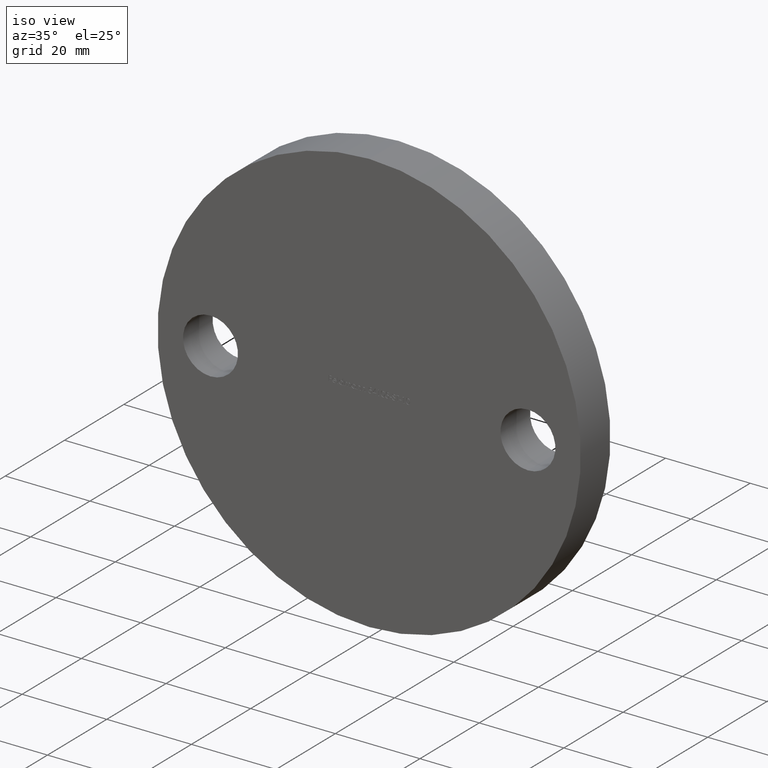
[diagram: clean part render]
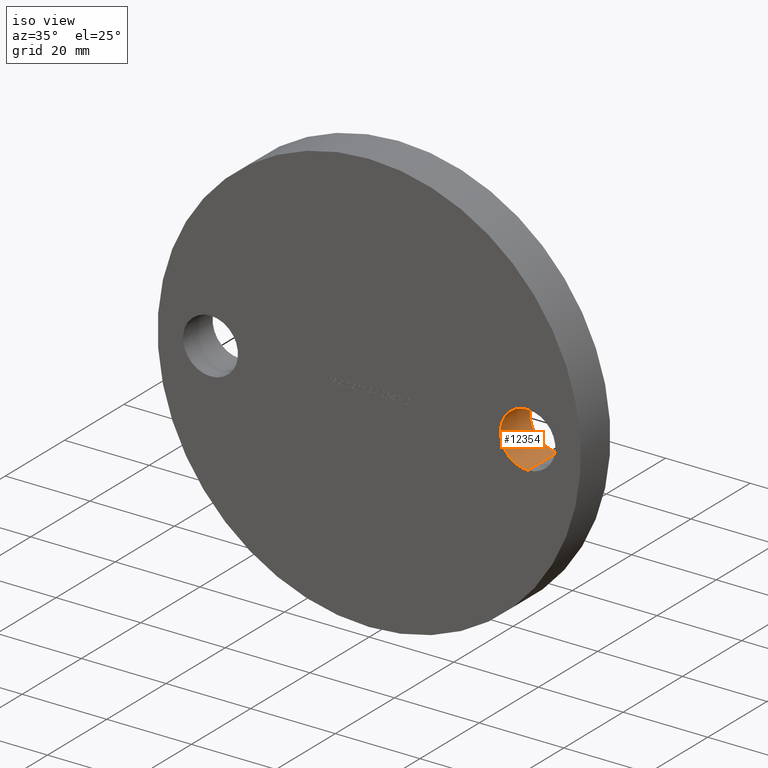
[diagram: same view with one face highlighted and labeled with its STEP entity id]
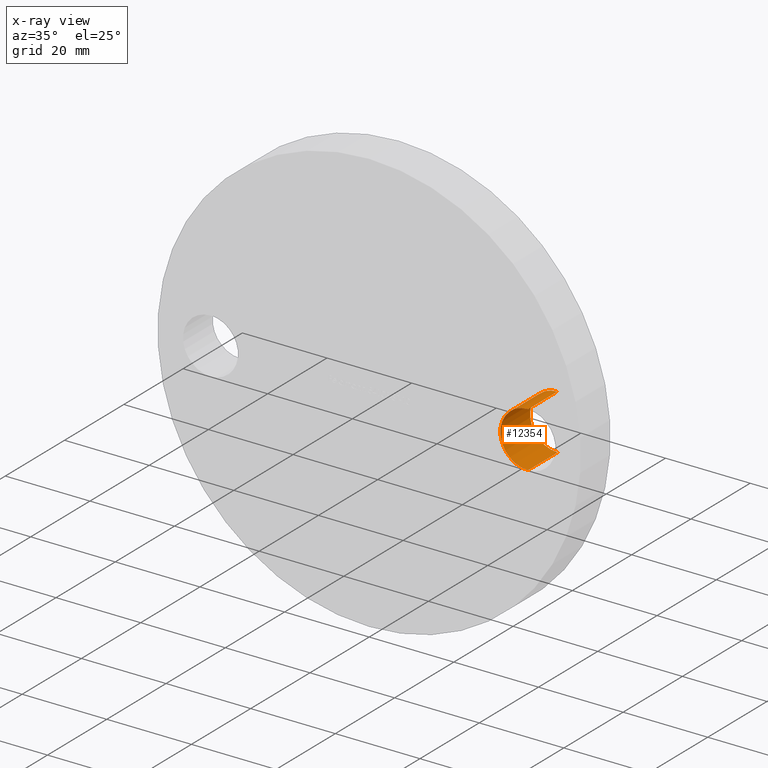
[diagram: x-ray of the same camera — body ghosted, the highlighted face saturated]
A machine part, iso view. The second image highlights one B-rep face of the part: STEP entity #12354.
The next image is the same camera in x-ray: the body ghosted, the highlighted face saturated — about 0% of this face is hidden behind the body in this view.
In plain terms, the highlighted cylindrical surface (edge-blend (fillet) strip) has radius 6.5 mm, axis along (-0, 1, -0).
Its self-contained STEP definition (entity closure, byte-faithful):
#202 = DIRECTION ( 'NONE',  ( -0.0000000000000000000, 1.000000000000000000, -0.0000000000000000000 ) ) ;
#772 = DIRECTION ( 'NONE',  ( -0.0000000000000000000, 1.000000000000000000, -0.0000000000000000000 ) ) ;
#798 = EDGE_LOOP ( 'NONE', ( #3390, #10795, #8798, #6932 ) ) ;
#1150 = CARTESIAN_POINT ( 'NONE',  ( 37.50000000000000000, 0.0000000000000000000, 6.499999999999991100 ) ) ;
#1635 = VERTEX_POINT ( 'NONE', #11488 ) ;
#1795 = CARTESIAN_POINT ( 'NONE',  ( 37.50000000000000000, 0.0000000000000000000, 6.499999999999991100 ) ) ;
#1816 = DIRECTION ( 'NONE',  ( -0.0000000000000000000, 1.000000000000000000, -0.0000000000000000000 ) ) ;
#2088 = CYLINDRICAL_SURFACE ( 'NONE', #4915, 6.500000000000000900 ) ;
#2424 = AXIS2_PLACEMENT_3D ( 'NONE', #9020, #8965, #3115 ) ;
#2838 = DIRECTION ( 'NONE',  ( 0.0000000000000000000, 0.0000000000000000000, 1.000000000000000000 ) ) ;
#3115 = DIRECTION ( 'NONE',  ( 0.0000000000000000000, 0.0000000000000000000, 1.000000000000000000 ) ) ;
#3230 = EDGE_CURVE ( 'NONE', #4342, #12319, #12392, .T. ) ;
#3390 = ORIENTED_EDGE ( 'NONE', *, *, #3230, .F. ) ;
#3837 = AXIS2_PLACEMENT_3D ( 'NONE', #7676, #7637, #10641 ) ;
#4342 = VERTEX_POINT ( 'NONE', #10237 ) ;
#4847 = VECTOR ( 'NONE', #202, 1000.000000000000000 ) ;
#4915 = AXIS2_PLACEMENT_3D ( 'NONE', #7558, #772, #2838 ) ;
#6180 = VECTOR ( 'NONE', #1816, 1000.000000000000000 ) ;
#6932 = ORIENTED_EDGE ( 'NONE', *, *, #8411, .F. ) ;
#7558 = CARTESIAN_POINT ( 'NONE',  ( 37.50000000000000000, 0.0000000000000000000, -9.184850993605148700E-015 ) ) ;
#7637 = DIRECTION ( 'NONE',  ( 0.0000000000000000000, 1.000000000000000000, 0.0000000000000000000 ) ) ;
#7676 = CARTESIAN_POINT ( 'NONE',  ( 37.50000000000000000, 10.00000000000000000, -9.184850993605148700E-015 ) ) ;
#8411 = EDGE_CURVE ( 'NONE', #12319, #11014, #11867, .T. ) ;
#8631 = CIRCLE ( 'NONE', #3837, 6.500000000000000900 ) ;
#8798 = ORIENTED_EDGE ( 'NONE', *, *, #11408, .T. ) ;
#8965 = DIRECTION ( 'NONE',  ( 0.0000000000000000000, 1.000000000000000000, 0.0000000000000000000 ) ) ;
#9020 = CARTESIAN_POINT ( 'NONE',  ( 37.50000000000000000, 0.0000000000000000000, -9.184850993605148700E-015 ) ) ;
#9886 = LINE ( 'NONE', #10513, #6180 ) ;
#9970 = CARTESIAN_POINT ( 'NONE',  ( 37.50000000000000000, 10.00000000000000000, 6.499999999999991100 ) ) ;
#10130 = EDGE_CURVE ( 'NONE', #4342, #1635, #9886, .T. ) ;
#10237 = CARTESIAN_POINT ( 'NONE',  ( 37.50000000000000000, 0.0000000000000000000, -6.500000000000009800 ) ) ;
#10513 = CARTESIAN_POINT ( 'NONE',  ( 37.50000000000000000, 0.0000000000000000000, -6.500000000000009800 ) ) ;
#10641 = DIRECTION ( 'NONE',  ( 0.0000000000000000000, 0.0000000000000000000, 1.000000000000000000 ) ) ;
#10795 = ORIENTED_EDGE ( 'NONE', *, *, #10130, .T. ) ;
#11014 = VERTEX_POINT ( 'NONE', #9970 ) ;
#11408 = EDGE_CURVE ( 'NONE', #1635, #11014, #8631, .T. ) ;
#11488 = CARTESIAN_POINT ( 'NONE',  ( 37.50000000000000000, 10.00000000000000000, -6.500000000000009800 ) ) ;
#11867 = LINE ( 'NONE', #1150, #4847 ) ;
#12319 = VERTEX_POINT ( 'NONE', #1795 ) ;
#12354 = ADVANCED_FACE ( 'NONE', ( #12498 ), #2088, .F. ) ;
#12392 = CIRCLE ( 'NONE', #2424, 6.500000000000000900 ) ;
#12498 = FACE_OUTER_BOUND ( 'NONE', #798, .T. ) ;